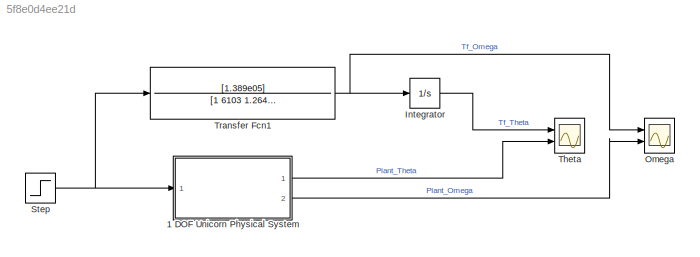
MODEL slx_5f8e0d4ee21d
KIND model
CONFIG AbsTol = auto
CONFIG EnableMultiTasking = off
CONFIG FixedStep = auto
CONFIG MaxStep = auto
CONFIG MinStep = auto
CONFIG RelTol = 1e-3
CONFIG SampleTimeConstraint = Unconstrained
CONFIG SolverName = VariableStepAuto
CONFIG StartTime = 0.0
CONFIG StopTime = 20
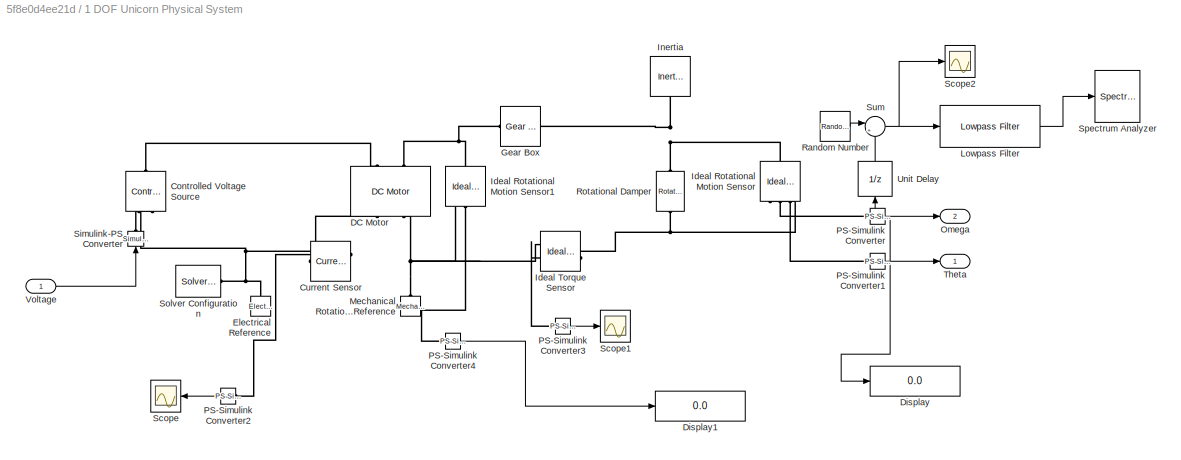
BLOCK [SubSystem] 1 DOF Unicorn Physical System
  Ports = [1, 2]
  RequestExecContextInheritance = off
BLOCK [Reference] 1 DOF Unicorn Physical System/Controlled Voltage Source  REF=fl_lib/Electrical/Electrical Sources/Controlled Voltage
Source
  NameLocation = right
  Ports = [0, 0, 0, 0, 0, 1, 2]
  SourceBlock = fl_lib/Electrical/Electrical Sources/Controlled Voltage\nSource
  SourceProductBaseCode = SS
  SourceType = Controlled Voltage\nSource
BLOCK [Reference] 1 DOF Unicorn Physical System/Current Sensor  REF=fl_lib/Electrical/Electrical Sensors/Current Sensor
  NameLocation = top
  Ports = [0, 0, 0, 0, 0, 1, 2]
  SourceBlock = fl_lib/Electrical/Electrical Sensors/Current Sensor
  SourceProductBaseCode = SS
  SourceType = Current Sensor
BLOCK [Reference] 1 DOF Unicorn Physical System/DC Motor  REF=ee_lib/Electromechanical/Brushed Motors/DC Motor
  NameLocation = right
  Ports = [0, 0, 0, 0, 0, 2, 2]
  SourceBlock = ee_lib/Electromechanical/Brushed Motors/DC Motor
  SourceProductBaseCode = PS
  SourceType = DC Motor
BLOCK [Display] 1 DOF Unicorn Physical System/Display
  Decimation = 1
  Ports = [1]
BLOCK [Display] 1 DOF Unicorn Physical System/Display1
  Decimation = 1
  Ports = [1]
BLOCK [Reference] 1 DOF Unicorn Physical System/Electrical Reference  REF=fl_lib/Electrical/Electrical Elements/Electrical Reference
  NameLocation = right
  Ports = [0, 0, 0, 0, 0, 1]
  SourceBlock = fl_lib/Electrical/Electrical Elements/Electrical Reference
  SourceProductBaseCode = SS
  SourceType = Electrical Reference
BLOCK [Reference] 1 DOF Unicorn Physical System/Gear Box  REF=fl_lib/Mechanical/Mechanisms/Gear Box
  Ports = [0, 0, 0, 0, 0, 1, 1]
  SourceBlock = fl_lib/Mechanical/Mechanisms/Gear Box
  SourceProductBaseCode = SS
  SourceType = Gear Box
BLOCK [Reference] 1 DOF Unicorn Physical System/Ideal Rotational Motion Sensor  REF=fl_lib/Mechanical/Mechanical Sensors/Ideal Rotational
Motion Sensor
  NameLocation = left
  Ports = [0, 0, 0, 0, 0, 1, 3]
  SourceBlock = fl_lib/Mechanical/Mechanical Sensors/Ideal Rotational\nMotion Sensor
  SourceProductBaseCode = SS
  SourceType = Ideal Rotational\nMotion Sensor
BLOCK [Reference] 1 DOF Unicorn Physical System/Ideal Rotational Motion Sensor1  REF=fl_lib/Mechanical/Mechanical Sensors/Ideal Rotational
Motion Sensor
  NameLocation = left
  Ports = [0, 0, 0, 0, 0, 1, 3]
  SourceBlock = fl_lib/Mechanical/Mechanical Sensors/Ideal Rotational\nMotion Sensor
  SourceProductBaseCode = SS
  SourceType = Ideal Rotational\nMotion Sensor
BLOCK [Reference] 1 DOF Unicorn Physical System/Ideal Torque Sensor  REF=fl_lib/Mechanical/Mechanical Sensors/Ideal Torque Sensor
  NameLocation = top
  Ports = [0, 0, 0, 0, 0, 1, 2]
  SourceBlock = fl_lib/Mechanical/Mechanical Sensors/Ideal Torque Sensor
  SourceProductBaseCode = SS
  SourceType = Ideal Torque Sensor
BLOCK [Reference] 1 DOF Unicorn Physical System/Inertia  REF=fl_lib/Mechanical/Rotational Elements/Inertia
  NameLocation = left
  Ports = [0, 0, 0, 0, 0, 1]
  SourceBlock = fl_lib/Mechanical/Rotational Elements/Inertia
  SourceProductBaseCode = SS
  SourceType = Inertia
BLOCK [Reference] 1 DOF Unicorn Physical System/Lowpass Filter  REF=dspfdesign/Lowpass Filter
  Ports = [1, 1]
  SourceBlock = dspfdesign/Lowpass Filter
  SourceProductBaseCode = DS
  SourceType = dsp.LowpassFilter
BLOCK [Reference] 1 DOF Unicorn Physical System/Mechanical Rotational Reference  REF=fl_lib/Mechanical/Rotational Elements/Mechanical
Rotational Reference
  NameLocation = right
  Ports = [0, 0, 0, 0, 0, 1]
  SourceBlock = fl_lib/Mechanical/Rotational Elements/Mechanical\nRotational Reference
  SourceProductBaseCode = SS
  SourceType = Mechanical\nRotational Reference
BLOCK [Outport] 1 DOF Unicorn Physical System/Omega
  Port = 2
BLOCK [Reference] 1 DOF Unicorn Physical System/PS-Simulink Converter  REF=nesl_utility/PS-Simulink
Converter
  Ports = [0, 1, 0, 0, 0, 1]
  SourceBlock = nesl_utility/PS-Simulink\nConverter
  SourceProductBaseCode = PW,SS
  SourceType = PS-Simulink\nConverter
BLOCK [Reference] 1 DOF Unicorn Physical System/PS-Simulink Converter1  REF=nesl_utility/PS-Simulink
Converter
  Ports = [0, 1, 0, 0, 0, 1]
  SourceBlock = nesl_utility/PS-Simulink\nConverter
  SourceProductBaseCode = PW,SS
  SourceType = PS-Simulink\nConverter
BLOCK [Reference] 1 DOF Unicorn Physical System/PS-Simulink Converter2  REF=nesl_utility/PS-Simulink
Converter
  NameLocation = top
  Ports = [0, 1, 0, 0, 0, 1]
  SourceBlock = nesl_utility/PS-Simulink\nConverter
  SourceProductBaseCode = PW,SS
  SourceType = PS-Simulink\nConverter
BLOCK [Reference] 1 DOF Unicorn Physical System/PS-Simulink Converter3  REF=nesl_utility/PS-Simulink
Converter
  Ports = [0, 1, 0, 0, 0, 1]
  SourceBlock = nesl_utility/PS-Simulink\nConverter
  SourceProductBaseCode = PW,SS
  SourceType = PS-Simulink\nConverter
BLOCK [Reference] 1 DOF Unicorn Physical System/PS-Simulink Converter4  REF=nesl_utility/PS-Simulink
Converter
  Ports = [0, 1, 0, 0, 0, 1]
  SourceBlock = nesl_utility/PS-Simulink\nConverter
  SourceProductBaseCode = PW,SS
  SourceType = PS-Simulink\nConverter
BLOCK [RandomNumber] 1 DOF Unicorn Physical System/Random Number
  SampleTime = 1/100
  Variance = 0.001
BLOCK [Reference] 1 DOF Unicorn Physical System/Rotational Damper  REF=fl_lib/Mechanical/Rotational Elements/Rotational Damper
  NameLocation = left
  Ports = [0, 0, 0, 0, 0, 1, 1]
  SourceBlock = fl_lib/Mechanical/Rotational Elements/Rotational Damper
  SourceProductBaseCode = SS
  SourceType = Rotational Damper
BLOCK [Scope] 1 DOF Unicorn Physical System/Scope
  Floating = off
  NameLocation = top
  NumInputPorts = 1
  Ports = [1]
  ScopeSpecificationString = Simulink.scopes.TimeScopeBlockCfg('CurrentConfiguration', extmgr.ConfigurationSet(extmgr.Configuration('Core','General UI',true),extmgr.Configuration('Core','Source UI',true),extmgr.Configuration('Sources','WiredSimulink',true,'DataLoggingVariableName','ScopeData2'),extmgr.Configuration('Visuals','Time Domain',true,'SerializedDisplays',{struct('MinYLimReal','-0.68699','MaxYLimReal','6.18294','YLab...<+1816ch>
BLOCK [Scope] 1 DOF Unicorn Physical System/Scope1
  Floating = off
  NumInputPorts = 1
  Ports = [1]
  ScopeSpecificationString = Simulink.scopes.TimeScopeBlockCfg('CurrentConfiguration', extmgr.ConfigurationSet(extmgr.Configuration('Core','General UI',true),extmgr.Configuration('Core','Source UI',true),extmgr.Configuration('Sources','WiredSimulink',true,'DataLoggingVariableName','ScopeData3'),extmgr.Configuration('Visuals','Time Domain',true,'SerializedDisplays',{struct('MinYLimReal','-0.00388','MaxYLimReal','0.0348','YLabe...<+1765ch>
BLOCK [Scope] 1 DOF Unicorn Physical System/Scope2
  Floating = off
  NumInputPorts = 1
  Ports = [1]
  ScopeSpecificationString = Simulink.scopes.TimeScopeBlockCfg('CurrentConfiguration', extmgr.ConfigurationSet(extmgr.Configuration('Core','General UI',true),extmgr.Configuration('Core','Source UI',true),extmgr.Configuration('Sources','WiredSimulink',true,'DataLoggingVariableName','ScopeData1'),extmgr.Configuration('Visuals','Time Domain',true,'SerializedDisplays',{struct('MinYLimReal','-1.62236','MaxYLimReal','14.96964','YLa...<+1366ch>
BLOCK [Reference] 1 DOF Unicorn Physical System/Simulink-PS Converter  REF=nesl_utility/Simulink-PS
Converter
  NameLocation = right
  Ports = [1, 0, 0, 0, 0, 0, 1]
  SourceBlock = nesl_utility/Simulink-PS\nConverter
  SourceProductBaseCode = PW,SS
  SourceType = Simulink-PS\nConverter
BLOCK [Reference] 1 DOF Unicorn Physical System/Solver Configuration  REF=nesl_utility/Solver
Configuration
  Ports = [0, 0, 0, 0, 0, 0, 1]
  SourceBlock = nesl_utility/Solver\nConfiguration
  SourceProductBaseCode = PW,SS
  SourceType = Solver\nConfiguration
BLOCK [SpectrumAnalyzer] 1 DOF Unicorn Physical System/Spectrum Analyzer
  Ports = [1]
  ScopeSpecificationString = spbscopes.SpectrumAnalyzerBlockCfg('CurrentConfiguration', extmgr.ConfigurationSet(extmgr.Configuration('Core','General UI',true),extmgr.Configuration('Core','Source UI',true),extmgr.Configuration('Sources','WiredSimulink',true),extmgr.Configuration('Visuals','Spectrum',true,'AxesProperties',struct('Color',{[0 0 0],[0 0 0]},'XColor',{[0.686274509803922 0.686274509803922 0.686274509803922],[0.68627...<+1782ch>
BLOCK [Sum] 1 DOF Unicorn Physical System/Sum
  Inputs = |++
  Ports = [2, 1]
BLOCK [Outport] 1 DOF Unicorn Physical System/Theta
BLOCK [UnitDelay] 1 DOF Unicorn Physical System/Unit Delay
  HasFrameUpgradeWarning = on
  NameLocation = right
  SampleTime = 1/1000
BLOCK [Inport] 1 DOF Unicorn Physical System/Voltage
BLOCK [Integrator] Integrator
  Ports = [1, 1]
BLOCK [Scope] Omega
  Floating = off
  NumInputPorts = 2
  Ports = [2]
  ScopeSpecificationString = Simulink.scopes.TimeScopeBlockCfg('CurrentConfiguration', extmgr.ConfigurationSet(extmgr.Configuration('Core','General UI',true),extmgr.Configuration('Core','Source UI',true),extmgr.Configuration('Sources','WiredSimulink',true,'DataLoggingVariableName','ScopeData1'),extmgr.Configuration('Visuals','Time Domain',true,'SerializedDisplays',{struct('MinYLimReal','-1.64871','MaxYLimReal','14.83835','YLa...<+1412ch>
BLOCK [Step] Step
  After = 12
  SampleTime = 0
  Time = 0
BLOCK [Scope] Theta
  Floating = off
  NumInputPorts = 2
  Ports = [2]
  ScopeSpecificationString = Simulink.scopes.TimeScopeBlockCfg('CurrentConfiguration', extmgr.ConfigurationSet(extmgr.Configuration('Core','General UI',true),extmgr.Configuration('Core','Source UI',true),extmgr.Configuration('Sources','WiredSimulink',true,'DataLoggingVariableName','ScopeData2'),extmgr.Configuration('Visuals','Time Domain',true,'SerializedDisplays',{struct('MinYLimReal','-16.4054','MaxYLimReal','147.64856','YL...<+1416ch>
BLOCK [TransferFcn] Transfer Fcn1
  Denominator = [1 6103 1.264e05]
  Numerator = [1.389e05]
LINE 1 DOF Unicorn Physical System/Lowpass Filter:1 -> 1 DOF Unicorn Physical System/Spectrum Analyzer:1
LINE 1 DOF Unicorn Physical System/PS-Simulink Converter1:1 -> 1 DOF Unicorn Physical System/Theta:1
LINE 1 DOF Unicorn Physical System/PS-Simulink Converter2:1 -> 1 DOF Unicorn Physical System/Scope:1
LINE 1 DOF Unicorn Physical System/PS-Simulink Converter3:1 -> 1 DOF Unicorn Physical System/Scope1:1
LINE 1 DOF Unicorn Physical System/PS-Simulink Converter4:1 -> 1 DOF Unicorn Physical System/Display1:1
NET 1 DOF Unicorn Physical System/PS-Simulink Converter:1 -> 1 DOF Unicorn Physical System/Display:1, 1 DOF Unicorn Physical System/Omega:1, 1 DOF Unicorn Physical System/Unit Delay:1
LINE 1 DOF Unicorn Physical System/Random Number:1 -> 1 DOF Unicorn Physical System/Sum:1
NET 1 DOF Unicorn Physical System/Sum:1 -> 1 DOF Unicorn Physical System/Lowpass Filter:1, 1 DOF Unicorn Physical System/Scope2:1
LINE 1 DOF Unicorn Physical System/Unit Delay:1 -> 1 DOF Unicorn Physical System/Sum:2
LINE 1 DOF Unicorn Physical System/Voltage:1 -> 1 DOF Unicorn Physical System/Simulink-PS Converter:1
LINE 1 DOF Unicorn Physical System:1 -> Theta:2
LINE 1 DOF Unicorn Physical System:2 -> Omega:2
LINE Integrator:1 -> Theta:1
NET Step:1 -> 1 DOF Unicorn Physical System:1, Transfer Fcn1:1
NET Transfer Fcn1:1 -> Integrator:1, Omega:1
PLINE 1 DOF Unicorn Physical System/Controlled Voltage Source:LConn1 -- 1 DOF Unicorn Physical System/DC Motor:LConn1
PLINE 1 DOF Unicorn Physical System/Controlled Voltage Source:RConn1 -- 1 DOF Unicorn Physical System/Simulink-PS Converter:RConn1
PNET net1: 1 DOF Unicorn Physical System/Controlled Voltage Source:RConn2 -- 1 DOF Unicorn Physical System/Current Sensor:RConn2 -- 1 DOF Unicorn Physical System/Electrical Reference:LConn1 -- 1 DOF Unicorn Physical System/Solver Configuration:RConn1
PLINE 1 DOF Unicorn Physical System/Current Sensor:LConn1 -- 1 DOF Unicorn Physical System/DC Motor:RConn1
PLINE 1 DOF Unicorn Physical System/Current Sensor:RConn1 -- 1 DOF Unicorn Physical System/PS-Simulink Converter2:LConn1
PNET net2: 1 DOF Unicorn Physical System/DC Motor:LConn2 -- 1 DOF Unicorn Physical System/Gear Box:LConn1 -- 1 DOF Unicorn Physical System/Ideal Rotational Motion Sensor1:LConn1
PNET net3: 1 DOF Unicorn Physical System/DC Motor:RConn2 -- 1 DOF Unicorn Physical System/Ideal Rotational Motion Sensor1:RConn1 -- 1 DOF Unicorn Physical System/Ideal Torque Sensor:RConn1 -- 1 DOF Unicorn Physical System/Mechanical Rotational Reference:LConn1
PNET net4: 1 DOF Unicorn Physical System/Gear Box:RConn1 -- 1 DOF Unicorn Physical System/Ideal Rotational Motion Sensor:LConn1 -- 1 DOF Unicorn Physical System/Inertia:LConn1 -- 1 DOF Unicorn Physical System/Rotational Damper:LConn1
PLINE 1 DOF Unicorn Physical System/Ideal Rotational Motion Sensor1:RConn2 -- 1 DOF Unicorn Physical System/PS-Simulink Converter4:LConn1
PNET net5: 1 DOF Unicorn Physical System/Ideal Rotational Motion Sensor:RConn1 -- 1 DOF Unicorn Physical System/Ideal Torque Sensor:LConn1 -- 1 DOF Unicorn Physical System/Rotational Damper:RConn1
PLINE 1 DOF Unicorn Physical System/Ideal Rotational Motion Sensor:RConn2 -- 1 DOF Unicorn Physical System/PS-Simulink Converter:LConn1
PLINE 1 DOF Unicorn Physical System/Ideal Rotational Motion Sensor:RConn3 -- 1 DOF Unicorn Physical System/PS-Simulink Converter1:LConn1
PLINE 1 DOF Unicorn Physical System/Ideal Torque Sensor:RConn2 -- 1 DOF Unicorn Physical System/PS-Simulink Converter3:LConn1
note: NET lines group one-source signal fan-out (src -> all destinations, sorted); 1:1 wires keep LINE; PNET lines group multi-terminal physical nets as a canonical sorted terminal list (undirected conserving connections); 2-terminal nets keep the pairwise PLINE form
